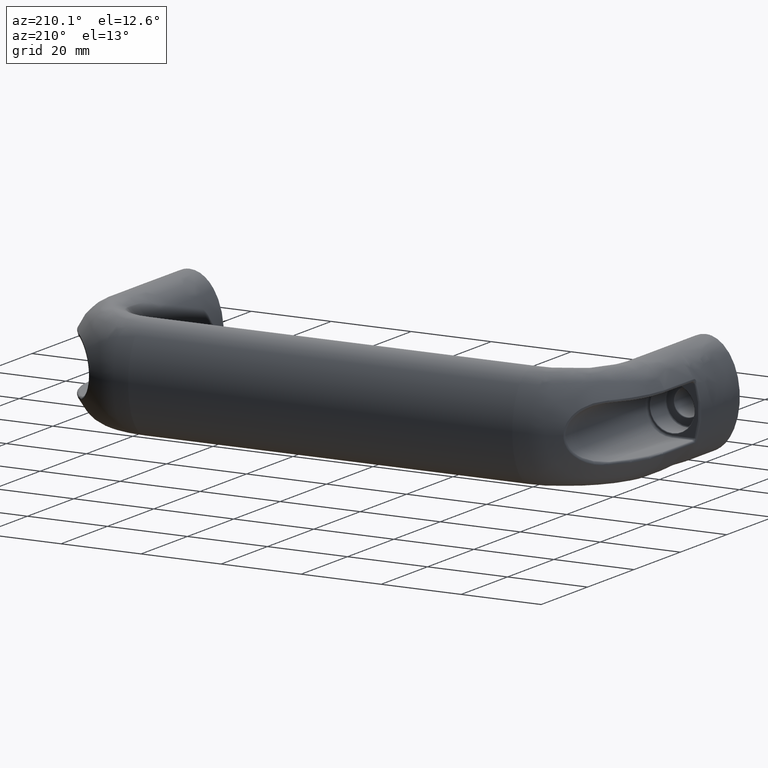
[diagram: clean part render]
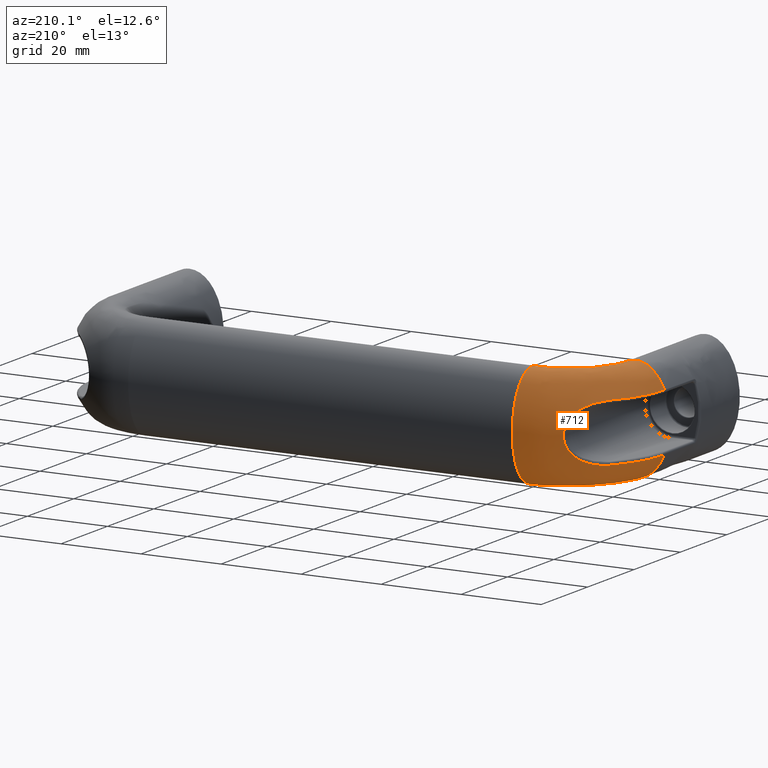
[diagram: same view with one face highlighted and labeled with its STEP entity id]
A machine part, auxiliary view. The second image highlights one B-rep face of the part: STEP entity #712.
In plain terms, the highlighted face is a freeform B-spline surface patch.
Its self-contained STEP definition (entity closure, byte-faithful):
#151=CIRCLE('',#797,16.5);
#205=FACE_OUTER_BOUND('',#269,.T.);
#269=EDGE_LOOP('',(#630,#631,#632,#633,#634,#635,#636,#637,#638));
#293=B_SPLINE_CURVE_WITH_KNOTS('',3,(#1628,#1629,#1630,#1631,#1632),
 .UNSPECIFIED.,.F.,.F.,(4,1,4),(-1.56834099361024,-0.672146140118672,0.),
 .UNSPECIFIED.);
#295=B_SPLINE_CURVE_WITH_KNOTS('',3,(#1713,#1714,#1715,#1716,#1717,#1718,
#1719,#1720,#1721,#1722,#1723,#1724),.UNSPECIFIED.,.F.,.F.,(4,1,1,1,1,1,
1,1,1,4),(-2.73713341995058,-2.34611435996046,-1.95509529997035,-1.56407623998023,
-1.36856670998517,-1.17305717999011,-0.977547649995051,-0.782038119999992,
-0.391019060009874,-1.97564055588136E-11),.UNSPECIFIED.);
#297=B_SPLINE_CURVE_WITH_KNOTS('',3,(#1770,#1771,#1772,#1773,#1774),
 .UNSPECIFIED.,.F.,.F.,(4,1,4),(-1.56834099359296,-0.672146140111268,0.),
 .UNSPECIFIED.);
#300=ELLIPSE('',#721,13.,8.5);
#307=ELLIPSE('',#795,13.,8.5);
#308=ELLIPSE('',#796,13.,8.5);
#309=ELLIPSE('',#798,13.,8.5);
#312=VERTEX_POINT('',#1017);
#361=VERTEX_POINT('',#1591);
#363=VERTEX_POINT('',#1626);
#365=VERTEX_POINT('',#1711);
#367=VERTEX_POINT('',#1768);
#370=VERTEX_POINT('',#1846);
#371=VERTEX_POINT('',#1848);
#375=EDGE_CURVE('',#312,#312,#300,.T.);
#446=EDGE_CURVE('',#363,#361,#293,.T.);
#449=EDGE_CURVE('',#365,#363,#295,.T.);
#452=EDGE_CURVE('',#367,#365,#297,.T.);
#462=EDGE_CURVE('',#367,#370,#307,.T.);
#463=EDGE_CURVE('',#370,#371,#308,.T.);
#464=EDGE_CURVE('',#371,#312,#151,.T.);
#465=EDGE_CURVE('',#371,#361,#309,.T.);
#630=ORIENTED_EDGE('',*,*,#446,.F.);
#631=ORIENTED_EDGE('',*,*,#449,.F.);
#632=ORIENTED_EDGE('',*,*,#452,.F.);
#633=ORIENTED_EDGE('',*,*,#462,.T.);
#634=ORIENTED_EDGE('',*,*,#463,.T.);
#635=ORIENTED_EDGE('',*,*,#464,.T.);
#636=ORIENTED_EDGE('',*,*,#375,.F.);
#637=ORIENTED_EDGE('',*,*,#464,.F.);
#638=ORIENTED_EDGE('',*,*,#465,.T.);
#667=(
BOUNDED_SURFACE()
B_SPLINE_SURFACE(2,2,((#1819,#1820,#1821),(#1822,#1823,#1824),(#1825,#1826,
#1827),(#1828,#1829,#1830),(#1831,#1832,#1833),(#1834,#1835,#1836),(#1837,
#1838,#1839),(#1840,#1841,#1842),(#1843,#1844,#1845)),.UNSPECIFIED.,.T.,
 .F.,.F.)
B_SPLINE_SURFACE_WITH_KNOTS((3,2,2,2,3),(3,3),(0.,1.5707963267949,3.14159265358979,
4.71238898038469,6.28318530717959),(-4.08592201481974E-5,1.5707963267949),
 .UNSPECIFIED.)
GEOMETRIC_REPRESENTATION_ITEM()
RATIONAL_B_SPLINE_SURFACE(((1.00001523774865,0.707099162510401,1.),(0.707117555901945,
0.499994612782432,0.707106781186548),(1.00001523774865,0.707099162510401,
1.),(0.707117555901945,0.499994612782432,0.707106781186548),(1.00001523774865,
0.707099162510401,1.),(0.707117555901945,0.499994612782432,0.707106781186548),
(1.00001523774865,0.707099162510401,1.),(0.707117555901944,0.499994612782432,
0.707106781186547),(1.00001523774865,0.707099162510401,1.)))
REPRESENTATION_ITEM('')
SURFACE()
);
#712=ADVANCED_FACE('',(#205),#667,.T.);
#721=AXIS2_PLACEMENT_3D('',#1020,#808,#809);
#795=AXIS2_PLACEMENT_3D('',#1847,#975,#976);
#796=AXIS2_PLACEMENT_3D('',#1849,#977,#978);
#797=AXIS2_PLACEMENT_3D('',#1850,#979,#980);
#798=AXIS2_PLACEMENT_3D('',#1851,#981,#982);
#808=DIRECTION('center_axis',(1.,2.83276944882399E-16,0.));
#809=DIRECTION('ref_axis',(0.,0.,-1.));
#975=DIRECTION('center_axis',(0.,1.,0.));
#976=DIRECTION('ref_axis',(0.,0.,-1.));
#977=DIRECTION('center_axis',(0.,1.,0.));
#978=DIRECTION('ref_axis',(0.,0.,-1.));
#979=DIRECTION('center_axis',(0.,0.,-1.));
#980=DIRECTION('ref_axis',(-1.,5.38289951333409E-16,0.));
#981=DIRECTION('center_axis',(0.,1.,0.));
#982=DIRECTION('ref_axis',(0.,0.,-1.));
#1017=CARTESIAN_POINT('',(16.5,46.5,-13.));
#1020=CARTESIAN_POINT('Origin',(16.5,46.5,0.));
#1591=CARTESIAN_POINT('',(-7.07752292926031,30.,-7.19939933326745));
#1626=CARTESIAN_POINT('',(-1.85699404194165,44.7959574621703,-7.19939933334355));
#1628=CARTESIAN_POINT('Ctrl Pts',(-1.85699404194165,44.7959574621703,-7.19939933334356));
#1629=CARTESIAN_POINT('Ctrl Pts',(-3.76884992121251,42.423963147199,-7.19939933334356));
#1630=CARTESIAN_POINT('Ctrl Pts',(-6.29836405731467,37.6172289014433,-7.19939933334356));
#1631=CARTESIAN_POINT('Ctrl Pts',(-7.07752292922721,32.28492272025,-7.19939933334355));
#1632=CARTESIAN_POINT('Ctrl Pts',(-7.07752292922721,30.,-7.19939933334355));
#1711=CARTESIAN_POINT('',(-1.85699404194165,44.7959574621703,7.19939933334358));
#1713=CARTESIAN_POINT('Ctrl Pts',(-1.85699404194165,44.7959574621703,7.19939933334357));
#1714=CARTESIAN_POINT('Ctrl Pts',(-1.0228315985365,45.8308830519829,7.19939933336523));
#1715=CARTESIAN_POINT('Ctrl Pts',(0.721270873985185,47.8443049812254,6.89930529352296));
#1716=CARTESIAN_POINT('Ctrl Pts',(3.3161484425935,50.5234210632865,5.3137331903456));
#1717=CARTESIAN_POINT('Ctrl Pts',(4.9887285493589,52.0796664906119,2.6799874926858));
#1718=CARTESIAN_POINT('Ctrl Pts',(5.37164785787621,52.4252228414618,-0.00333315235053439));
#1719=CARTESIAN_POINT('Ctrl Pts',(5.08400132299672,52.1656204416199,-2.00307442557556));
#1720=CARTESIAN_POINT('Ctrl Pts',(4.31826051204734,51.4564550516414,-3.74569304824942));
#1721=CARTESIAN_POINT('Ctrl Pts',(2.88730479507507,50.0791822146253,-5.56687428313369));
#1722=CARTESIAN_POINT('Ctrl Pts',(0.717220972680197,47.8414075980805,-6.9064669455806));
#1723=CARTESIAN_POINT('Ctrl Pts',(-1.0228315985204,45.8308830520019,-7.19939933336333));
#1724=CARTESIAN_POINT('Ctrl Pts',(-1.85699404192579,44.79595746219,-7.19939933334356));
#1768=CARTESIAN_POINT('',(-7.0775229292272,30.,7.19939933334357));
#1770=CARTESIAN_POINT('Ctrl Pts',(-7.0775229292272,30.,7.19939933334357));
#1771=CARTESIAN_POINT('Ctrl Pts',(-7.0775229292272,33.0465636269664,7.19939933334357));
#1772=CARTESIAN_POINT('Ctrl Pts',(-6.03051050216809,38.3763760862346,7.19939933334358));
#1773=CARTESIAN_POINT('Ctrl Pts',(-3.29088595147629,43.0169617258135,7.19939933334357));
#1774=CARTESIAN_POINT('Ctrl Pts',(-1.85699404205223,44.7959574620331,7.19939933334357));
#1819=CARTESIAN_POINT('Ctrl Pts',(1.11639413526075E-8,29.9993930319522,
-13.));
#1820=CARTESIAN_POINT('Ctrl Pts',(-0.000606979212169742,46.5,-13.));
#1821=CARTESIAN_POINT('Ctrl Pts',(16.5,46.5,-13.));
#1822=CARTESIAN_POINT('Ctrl Pts',(-8.49999998308494,29.9990803514427,-13.));
#1823=CARTESIAN_POINT('Ctrl Pts',(-8.50091966547299,55.,-13.));
#1824=CARTESIAN_POINT('Ctrl Pts',(16.5,55.,-13.));
#1825=CARTESIAN_POINT('Ctrl Pts',(-8.49999998308494,29.9990803514427,-7.9602041944578E-16));
#1826=CARTESIAN_POINT('Ctrl Pts',(-8.50091966547299,55.,-7.9602041944578E-16));
#1827=CARTESIAN_POINT('Ctrl Pts',(16.5,55.,-7.9602041944578E-16));
#1828=CARTESIAN_POINT('Ctrl Pts',(-8.49999998308494,29.9990803514427,13.));
#1829=CARTESIAN_POINT('Ctrl Pts',(-8.50091966547299,55.,13.));
#1830=CARTESIAN_POINT('Ctrl Pts',(16.5,55.,13.));
#1831=CARTESIAN_POINT('Ctrl Pts',(1.11639413526075E-8,29.9993930319522,
13.));
#1832=CARTESIAN_POINT('Ctrl Pts',(-0.000606979212169742,46.5,13.));
#1833=CARTESIAN_POINT('Ctrl Pts',(16.5,46.5,13.));
#1834=CARTESIAN_POINT('Ctrl Pts',(8.50000000541282,29.9997057124617,13.));
#1835=CARTESIAN_POINT('Ctrl Pts',(8.49970570704865,38.,13.));
#1836=CARTESIAN_POINT('Ctrl Pts',(16.5,38.,13.));
#1837=CARTESIAN_POINT('Ctrl Pts',(8.50000000541282,29.9997057124617,2.38806125833734E-15));
#1838=CARTESIAN_POINT('Ctrl Pts',(8.49970570704865,38.,2.38806125833734E-15));
#1839=CARTESIAN_POINT('Ctrl Pts',(16.5,38.,2.38806125833734E-15));
#1840=CARTESIAN_POINT('Ctrl Pts',(8.50000000541282,29.9997057124617,-13.));
#1841=CARTESIAN_POINT('Ctrl Pts',(8.49970570704865,38.,-13.));
#1842=CARTESIAN_POINT('Ctrl Pts',(16.5,38.,-13.));
#1843=CARTESIAN_POINT('Ctrl Pts',(1.11639435730536E-8,29.9993930319522,
-13.));
#1844=CARTESIAN_POINT('Ctrl Pts',(-0.000606979212167521,46.5,-13.));
#1845=CARTESIAN_POINT('Ctrl Pts',(16.5,46.5,-13.));
#1846=CARTESIAN_POINT('',(-2.28971929460022E-15,30.,13.));
#1847=CARTESIAN_POINT('Origin',(-3.33066907387547E-15,30.,0.));
#1848=CARTESIAN_POINT('',(-3.33066907387547E-15,30.,-13.));
#1849=CARTESIAN_POINT('Origin',(-3.33066907387547E-15,30.,0.));
#1850=CARTESIAN_POINT('Origin',(16.5,30.,-13.));
#1851=CARTESIAN_POINT('Origin',(-3.33066907387547E-15,30.,0.));